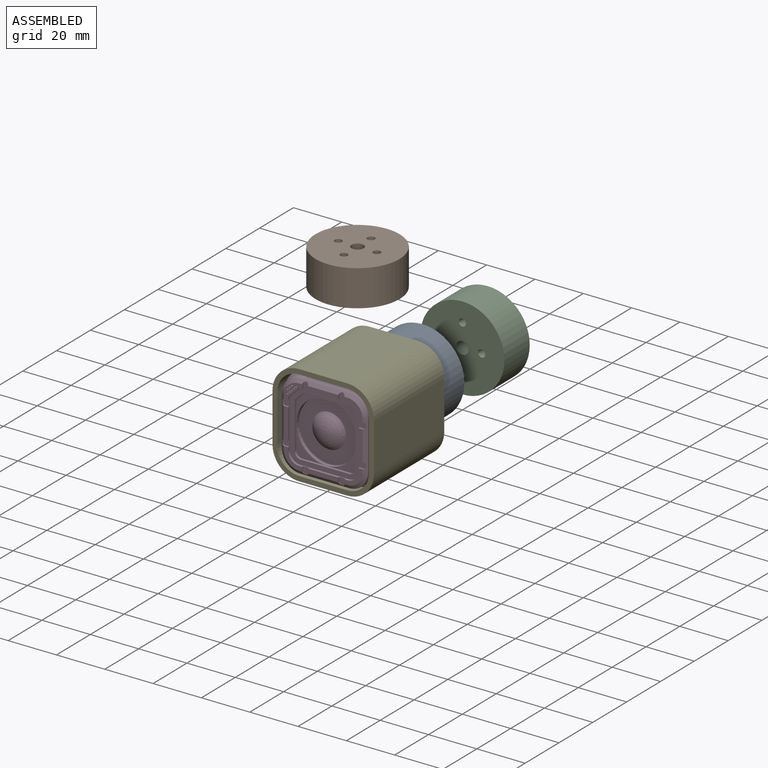
[diagram: assembled view]
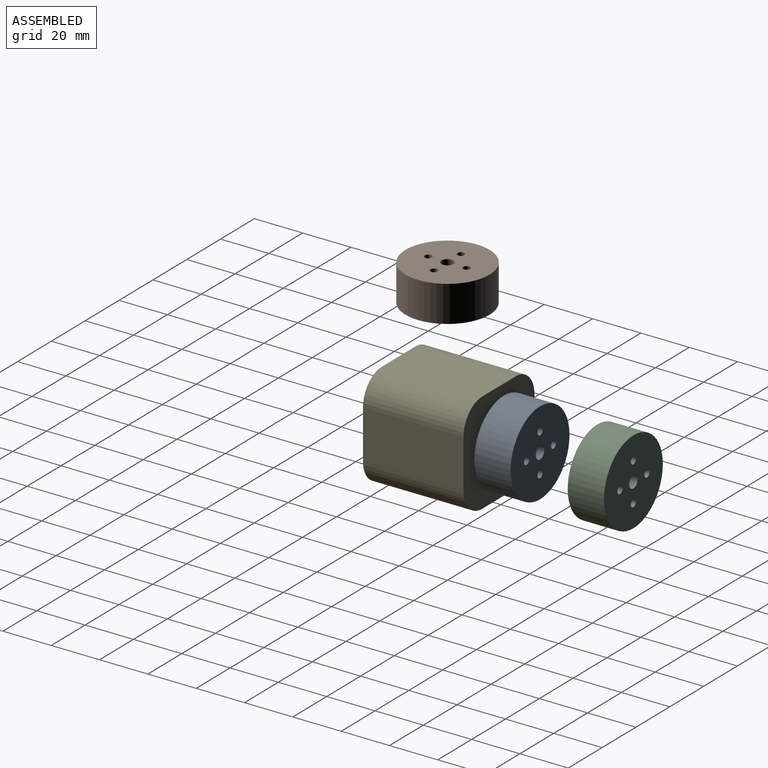
[diagram: assembled view, second angle]
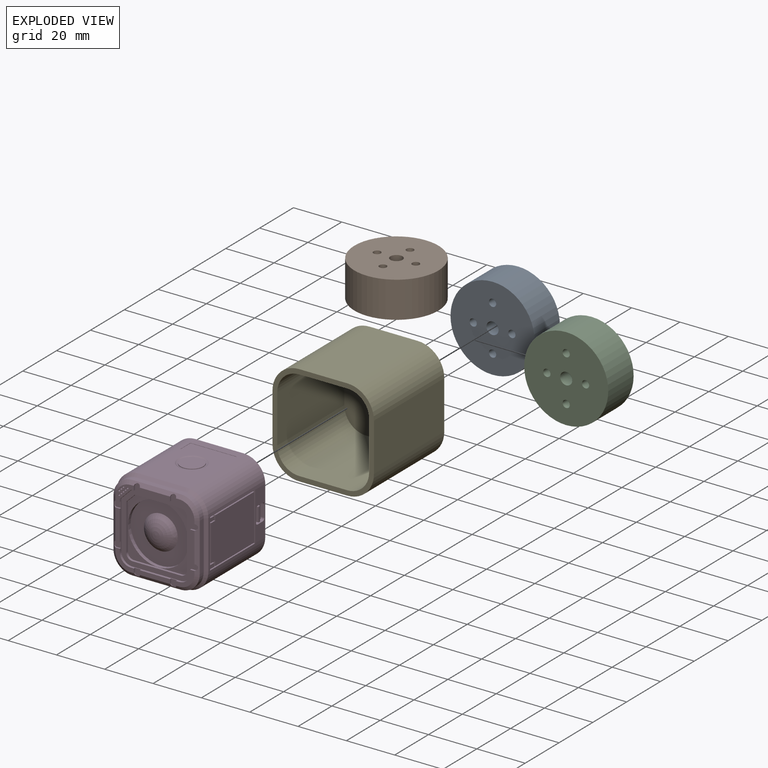
[diagram: exploded view]
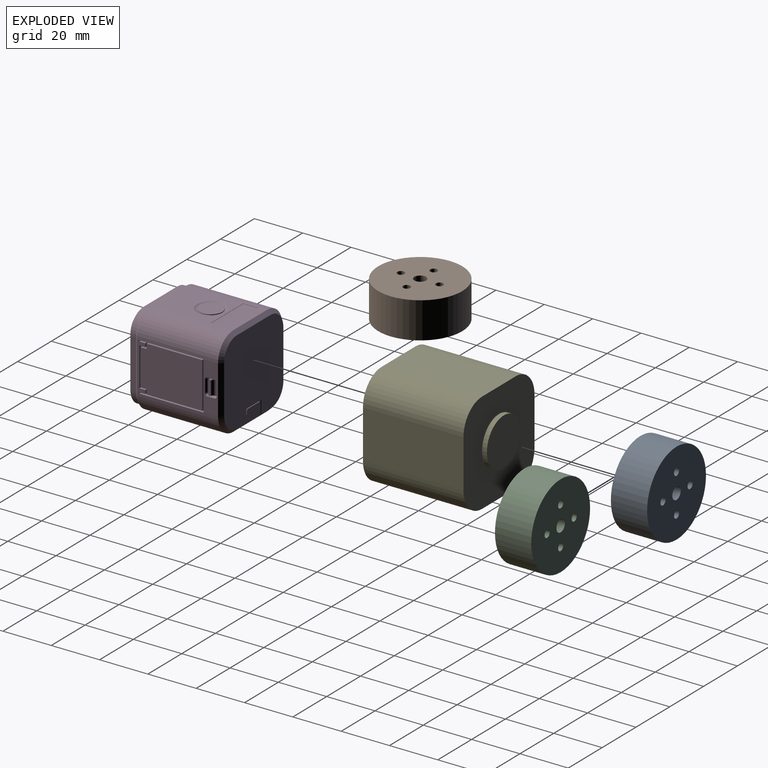
[diagram: exploded view, second angle]
ASSEMBLY  parts=5 mates=2
PART A: 20 faces, bbox 34.8x34.8x15 mm
  f0: cylinder r=17.4mm len=34.8mm, axis (0,0,-1), area 1639.9mm2, adj f1,f2
  f1: plane 34.8x34.8mm, normal (0,0,1), area 903.2mm2, adj f0,f11,f13,f15,f17,f19
  f2: plane 34.8x34.8mm, normal (0,0,-1), area 903.2mm2, adj f0,f3,f5,f7,f9,f19
  f3: cylinder r=1.5mm len=5mm, axis (0,0,-1), area 47.1mm2, adj f2,f4
  f4: plane 3x3mm, normal (0,0,-1), area 7.1mm2, adj f3
  f5: cylinder r=1.5mm len=5mm, axis (0,0,-1), area 47.1mm2, adj f2,f6
  f6: plane 3x3mm, normal (0,0,-1), area 7.1mm2, adj f5
  f7: cylinder r=1.5mm len=5mm, axis (0,0,-1), area 47.1mm2, adj f2,f8
  f8: plane 3x3mm, normal (0,0,-1), area 7.1mm2, adj f7
  f9: cylinder r=1.5mm len=5mm, axis (0,0,-1), area 47.1mm2, adj f2,f10
  f10: plane 3x3mm, normal (0,0,-1), area 7.1mm2, adj f9
  f11: cylinder r=1.5mm len=5mm, axis (0,0,1), area 47.1mm2, adj f1,f12
  f12: plane 3x3mm, normal (0,0,1), area 7.1mm2, adj f11
  f13: cylinder r=1.5mm len=5mm, axis (0,0,1), area 47.1mm2, adj f1,f14
  f14: plane 3x3mm, normal (0,0,1), area 7.1mm2, adj f13
  f15: cylinder r=1.5mm len=5mm, axis (0,0,1), area 47.1mm2, adj f1,f16
  f16: plane 3x3mm, normal (0,0,1), area 7.1mm2, adj f15
  f17: cylinder r=1.5mm len=5mm, axis (0,0,1), area 47.1mm2, adj f1,f18
  f18: plane 3x3mm, normal (0,0,1), area 7.1mm2, adj f17
  f19: cylinder r=2.5mm len=15mm, axis (0,0,1), area 235.6mm2, adj f1,f2
PART B: same geometry as A
PART C: same geometry as A
PART D: 200 faces, bbox 38.3x39.8x38.2 mm
  f0: plane 6x1mm, normal (1,0,0), area 5.9mm2, adj f1,f3,f182,f190,f191,f192,f193,f194
  f1: plane 3x2mm, normal (0,0,-1), area 3.7mm2, adj f0,f183,f184,f186,f187,f191,f192,f195
  f2: plane 20x6mm, normal (1,0,0), area 85.9mm2, adj f22,f23,f52,f156,f178,f179,f185,f188
  f3: plane 5.4x1mm, normal (0,-1,0), area 5.4mm2, adj f0,f180,f190,f191,f195,f199
  f4: plane 20x3.5mm, normal (1,0,0), area 27.5mm2, adj f22,f23,f47,f158,f159,f160,f161,f162
  f5: plane 20x1.5mm, normal (0,0.71,-0.71), area 38.5mm2, adj f18,f21,f54,f57,f145,f151,f153
  f6: plane 12.53x1.8mm, normal (0,-1,0), area 22.5mm2, adj f14,f67,f111,f114,f116,f117
  f7: plane 7.62x7.62mm, normal (0,-1,0), area 19.9mm2, adj f14,f16,f60,f65,f66,f67,f112,f113
  f8: plane 7.62x7.62mm, normal (0,-1,0), area 19.9mm2, adj f14,f15,f59,f67,f68,f69,f102,f104
  f9: plane 12.53x1.8mm, normal (0,-1,0), area 22.5mm2, adj f16,f65,f121,f124,f126,f127
  f10: plane 7.62x7.62mm, normal (0,-1,0), area 19.9mm2, adj f16,f17,f62,f63,f64,f65,f122,f123
  f11: plane 12.53x1.8mm, normal (0,-1,0), area 22.5mm2, adj f17,f63,f131,f134,f136,f138
  f12: plane 7.62x7.62mm, normal (0,-1,0), area 23.4mm2, adj f15,f17,f61,f63,f69,f70,f85,f87
  f13: plane 12.53x1.8mm, normal (0,-1,0), area 22.5mm2, adj f15,f69,f101,f103,f106,f107
  f14: plane 20x1.5mm, normal (0.55,-0.83,0), area 31.4mm2, adj f6,f7,f8,f29,f59,f60,f111,f113
  f15: plane 20x1.5mm, normal (0,-0.83,0.55), area 31.4mm2, adj f8,f12,f13,f26,f59,f61,f101,f102
  f16: plane 20x1.5mm, normal (0,-0.83,-0.55), area 31.4mm2, adj f7,f9,f10,f28,f60,f62,f121,f123
  f17: plane 20x1.5mm, normal (-0.55,-0.83,0), area 31.4mm2, adj f10,f11,f12,f27,f61,f62,f131,f132
  f18: plane 33.6x20mm, normal (0,0,-1), area 672mm2, adj f5,f22,f25,f51
  f19: plane 33.6x20mm, normal (0,0,1), area 454.1mm2, adj f23,f24,f38,f39,f40,f41,f43,f44
  f20: plane 33.6x20mm, normal (-1,0,0), area 672mm2, adj f24,f25,f48,f58
  f21: plane 35x35mm, normal (0,1,0), area 1122mm2, adj f5,f52,f53,f54,f55,f56,f57,f58
  f22: cylinder r=9mm len=33.6mm, axis (0,-1,0), area 475mm2, adj f2,f4,f18,f49,f54,f175
  f23: cylinder r=9mm len=33.6mm, axis (0,1,0), area 475mm2, adj f2,f4,f19,f45,f53,f157
  f24: cylinder r=9mm len=33.6mm, axis (0,-1,0), area 475mm2, adj f19,f20,f46,f56
  f25: cylinder r=9mm len=33.6mm, axis (0,1,0), area 475mm2, adj f18,f20,f50,f57
  f26: plane 20x2.35mm, normal (0,0,1), area 47mm2, adj f15,f30,f33,f44
  f27: plane 20x2.35mm, normal (-1,0,0), area 47mm2, adj f17,f30,f31,f48
  f28: plane 20x2.35mm, normal (0,0,-1), area 47mm2, adj f16,f31,f32,f51
  f29: plane 20x2.35mm, normal (1,0,0), area 47mm2, adj f14,f32,f33,f47
  f30: cylinder r=7.85mm len=7.85mm, axis (0,1,0), area 29mm2, adj f26,f27,f46,f61
  f31: cylinder r=7.85mm len=7.85mm, axis (0,-1,0), area 29mm2, adj f27,f28,f50,f62
  f32: cylinder r=7.85mm len=7.85mm, axis (0,1,0), area 29mm2, adj f28,f29,f49,f60
  f33: cylinder r=7.85mm len=7.85mm, axis (0,-1,0), area 29mm2, adj f26,f29,f45,f59
  f34: cylinder r=4.75mm len=9.5mm, axis (0,0,1), area 6mm2, adj f35,f37
  f35: plane 9.57x9.57mm, normal (0,0,1), area 1.1mm2, adj f34,f43
  f36: plane 9.3x9.3mm, normal (0,0,1), area 67.9mm2, adj f37
  f37: torus R=4.65mm, axis (0,0,1), area 4.7mm2, adj f34,f36
  f38: plane 6x0.1mm, normal (1,0,0), area 0.6mm2, adj f19,f39,f41,f42
  f39: plane 19x0.1mm, normal (0,1,0), area 1.9mm2, adj f19,f38,f40,f42
  f40: plane 6x0.1mm, normal (-1,0,0), area 0.6mm2, adj f19,f39,f41,f42
  f41: plane 19x0.1mm, normal (0,-1,0), area 1.9mm2, adj f19,f38,f40,f42
  f42: plane 19x6mm, normal (0,0,1), area 114mm2, adj f38,f39,f40,f41
  f43: torus R=4.79mm, axis (0,0,-1), area 34mm2, adj f19,f35
  f44: plane 20x1.15mm, normal (0,-0.71,0.71), area 32.5mm2, adj f19,f26,f45,f46
  f45: cone r=7.5mm half-angle=45deg, axis (0,1,0), area 21.5mm2, adj f23,f33,f44,f47
  f46: cone r=7.5mm half-angle=45deg, axis (0,1,0), area 21.5mm2, adj f24,f30,f44,f48
  f47: plane 20x1.15mm, normal (0.71,-0.71,0), area 32.5mm2, adj f4,f29,f45,f49
  f48: plane 20x1.15mm, normal (-0.71,-0.71,0), area 32.5mm2, adj f20,f27,f46,f50
  f49: cone r=7.5mm half-angle=45deg, axis (0,1,0), area 21.5mm2, adj f22,f32,f47,f51
  f50: cone r=7.5mm half-angle=45deg, axis (0,1,0), area 21.5mm2, adj f25,f31,f48,f51
  f51: plane 20x1.15mm, normal (0,-0.71,-0.71), area 32.5mm2, adj f18,f28,f49,f50
  f52: plane 20x1.5mm, normal (0.71,0.71,0), area 42.4mm2, adj f2,f21,f53,f54
  f53: cone r=7.5mm half-angle=45deg, axis (0,-1,0), area 27.5mm2, adj f21,f23,f52,f55
  f54: cone r=7.5mm half-angle=45deg, axis (0,-1,0), area 27.5mm2, adj f5,f21,f22,f52
  f55: plane 20x1.5mm, normal (0,0.71,0.71), area 42.4mm2, adj f19,f21,f53,f56
  f56: cone r=7.5mm half-angle=45deg, axis (0,-1,0), area 27.5mm2, adj f21,f24,f55,f58
  f57: cone r=7.5mm half-angle=45deg, axis (0,-1,0), area 27.5mm2, adj f5,f21,f25,f58
  f58: plane 20x1.5mm, normal (-0.71,0.71,0), area 42.4mm2, adj f20,f21,f56,f57
  f59: cone r=6.35mm half-angle=56.3deg, axis (0,1,0), area 20.1mm2, adj f8,f14,f15,f33
  f60: cone r=6.35mm half-angle=56.3deg, axis (0,1,0), area 20.1mm2, adj f7,f14,f16,f32
  f61: cone r=6.35mm half-angle=56.3deg, axis (0,1,0), area 20.1mm2, adj f12,f15,f17,f30
  f62: cone r=6.35mm half-angle=56.3deg, axis (0,1,0), area 20.1mm2, adj f10,f16,f17,f31
  f63: plane 19.85x1mm, normal (1,0,0), area 16.4mm2, adj f10,f11,f12,f64,f70,f71,f133,f134
  f64: cylinder r=4.55mm len=4.55mm, axis (0,-1,0), area 7.1mm2, adj f10,f63,f65,f71
  f65: plane 20x1mm, normal (0,0,1), area 16.5mm2, adj f7,f9,f10,f64,f66,f71,f122,f124
  f66: cylinder r=4.55mm len=4.55mm, axis (0,-1,0), area 7.1mm2, adj f7,f65,f67,f71
  f67: plane 20x1mm, normal (-1,0,0), area 16.5mm2, adj f6,f7,f8,f66,f68,f71,f112,f114
  f68: cylinder r=4.55mm len=4.55mm, axis (0,-1,0), area 7.1mm2, adj f8,f67,f69,f71
  f69: plane 19.85x1mm, normal (0,0,-1), area 16.4mm2, adj f8,f12,f13,f68,f70,f71,f103,f104
  f70: plane 4.7x4.7mm, normal (0.71,0,-0.71), area 6.6mm2, adj f12,f63,f69,f71
  f71: plane 29.1x29.1mm, normal (0,-1,0), area 202.8mm2, adj f63,f64,f65,f66,f67,f68,f69,f70
  f72: plane 19.02x1mm, normal (1,0,0), area 19mm2, adj f71,f73,f79,f80
  f73: cylinder r=2.55mm len=2.55mm, axis (0,-1,0), area 4mm2, adj f71,f72,f74,f80
  f74: plane 20x1mm, normal (0,0,1), area 20mm2, adj f71,f73,f75,f80
  f75: cylinder r=2.55mm len=2.55mm, axis (0,-1,0), area 4mm2, adj f71,f74,f76,f80
  f76: plane 20x1mm, normal (-1,0,0), area 20mm2, adj f71,f75,f77,f80
  f77: cylinder r=2.55mm len=2.55mm, axis (0,-1,0), area 4mm2, adj f71,f76,f78,f80
  f78: plane 19.02x1mm, normal (0,0,-1), area 19mm2, adj f71,f77,f79,f80
  f79: plane 3.53x3.53mm, normal (0.71,0,-0.71), area 5mm2, adj f71,f72,f78,f80
  f80: plane 25.1x25.1mm, normal (0,-1,0), area 128.7mm2, adj f72,f73,f74,f75,f76,f77,f78,f79
  f81: cylinder r=12.5mm len=25mm, axis (0,-1,0), area 117.8mm2, adj f80,f82
  f82: plane 25x25mm, normal (0,-1,0), area 336.9mm2, adj f81,f84
  f83: plane 0.14x0.14mm, normal (0,-1,0), area 0mm2, adj f84
  f84: torus R=0.07mm, axis (0,1,0), area 182.6mm2, adj f82,f83
  f85: cylinder r=0.35mm len=2mm, axis (0,-1,0), area 4.4mm2, adj f12,f86
  f86: plane 0.7x0.7mm, normal (0,-1,0), area 0.4mm2, adj f85
  f87: cylinder r=0.35mm len=2mm, axis (0,-1,0), area 4.4mm2, adj f12,f88
  f88: plane 0.7x0.7mm, normal (0,-1,0), area 0.4mm2, adj f87
  f89: cylinder r=0.35mm len=2mm, axis (0,-1,0), area 4.4mm2, adj f12,f90
  f90: plane 0.7x0.7mm, normal (0,-1,0), area 0.4mm2, adj f89
  f91: cylinder r=0.35mm len=2mm, axis (0,-1,0), area 4.4mm2, adj f12,f92
  f92: plane 0.7x0.7mm, normal (0,-1,0), area 0.4mm2, adj f91
  f93: cylinder r=0.35mm len=2mm, axis (0,-1,0), area 4.4mm2, adj f12,f94
  f94: plane 0.7x0.7mm, normal (0,-1,0), area 0.4mm2, adj f93
  f95: cylinder r=0.35mm len=2mm, axis (0,-1,0), area 4.4mm2, adj f12,f96
  f96: plane 0.7x0.7mm, normal (0,-1,0), area 0.4mm2, adj f95
  f97: cylinder r=0.35mm len=2mm, axis (0,-1,0), area 4.4mm2, adj f12,f98
  f98: plane 0.7x0.7mm, normal (0,-1,0), area 0.4mm2, adj f97
  f99: cylinder r=0.35mm len=2mm, axis (0,-1,0), area 4.4mm2, adj f12,f100
  f100: plane 0.7x0.7mm, normal (0,-1,0), area 0.4mm2, adj f99
  f101: cylinder r=1.25mm len=1.25mm, axis (0,-1,0), area 0.6mm2, adj f13,f15,f103,f105
  f102: cylinder r=1.25mm len=1.25mm, axis (0,-1,0), area 0.6mm2, adj f8,f15,f104,f105
  f103: plane 1.6x0.7mm, normal (1,0,0), area 1.1mm2, adj f13,f69,f101,f105
  f104: plane 1.6x0.7mm, normal (-1,0,0), area 1.1mm2, adj f8,f69,f102,f105
  f105: plane 2.85x2.5mm, normal (0,-1,0), area 6.5mm2, adj f69,f101,f102,f103,f104
  f106: cylinder r=1.25mm len=1.25mm, axis (0,-1,0), area 0.6mm2, adj f13,f15,f107,f110
  f107: plane 1.6x0.7mm, normal (-1,0,0), area 1.1mm2, adj f13,f69,f106,f110
  f108: cylinder r=1.25mm len=1.25mm, axis (0,-1,0), area 0.6mm2, adj f12,f15,f109,f110
  f109: plane 1.6x0.7mm, normal (1,0,0), area 1.1mm2, adj f12,f69,f108,f110
  f110: plane 2.85x2.5mm, normal (0,-1,0), area 6.5mm2, adj f69,f106,f107,f108,f109
  f111: cylinder r=1.25mm len=1.25mm, axis (0,-1,0), area 0.6mm2, adj f6,f14,f114,f115
  f112: plane 1.6x0.7mm, normal (0,0,1), area 1.1mm2, adj f7,f67,f113,f115
  f113: cylinder r=1.25mm len=1.25mm, axis (0,-1,0), area 0.6mm2, adj f7,f14,f112,f115
  f114: plane 1.6x0.7mm, normal (0,0,-1), area 1.1mm2, adj f6,f67,f111,f115
  f115: plane 2.85x2.5mm, normal (0,-1,0), area 6.5mm2, adj f67,f111,f112,f113,f114
  f116: cylinder r=1.25mm len=1.25mm, axis (0,-1,0), area 0.6mm2, adj f6,f14,f117,f120
  f117: plane 1.6x0.7mm, normal (0,0,1), area 1.1mm2, adj f6,f67,f116,f120
  f118: cylinder r=1.25mm len=1.25mm, axis (0,-1,0), area 0.6mm2, adj f8,f14,f119,f120
  f119: plane 1.6x0.7mm, normal (0,0,-1), area 1.1mm2, adj f8,f67,f118,f120
  f120: plane 2.85x2.5mm, normal (0,-1,0), area 6.5mm2, adj f67,f116,f117,f118,f119
  f121: cylinder r=1.25mm len=1.25mm, axis (0,-1,0), area 0.6mm2, adj f9,f16,f124,f125
  f122: plane 1.6x0.7mm, normal (1,0,0), area 1.1mm2, adj f10,f65,f123,f125
  f123: cylinder r=1.25mm len=1.25mm, axis (0,-1,0), area 0.6mm2, adj f10,f16,f122,f125
  f124: plane 1.6x0.7mm, normal (-1,0,0), area 1.1mm2, adj f9,f65,f121,f125
  f125: plane 2.85x2.5mm, normal (0,-1,0), area 6.5mm2, adj f65,f121,f122,f123,f124
  f126: cylinder r=1.25mm len=1.25mm, axis (0,-1,0), area 0.6mm2, adj f9,f16,f127,f130
  f127: plane 1.6x0.7mm, normal (1,0,0), area 1.1mm2, adj f9,f65,f126,f130
  f128: cylinder r=1.25mm len=1.25mm, axis (0,-1,0), area 0.6mm2, adj f7,f16,f129,f130
  f129: plane 1.6x0.7mm, normal (-1,0,0), area 1.1mm2, adj f7,f65,f128,f130
  f130: plane 2.85x2.5mm, normal (0,-1,0), area 6.5mm2, adj f65,f126,f127,f128,f129
  f131: cylinder r=1.25mm len=1.25mm, axis (0,-1,0), area 0.6mm2, adj f11,f17,f134,f135
  f132: cylinder r=1.25mm len=1.25mm, axis (0,-1,0), area 0.6mm2, adj f10,f17,f133,f135
  f133: plane 1.6x0.7mm, normal (0,0,1), area 1.1mm2, adj f10,f63,f132,f135
  f134: plane 1.6x0.7mm, normal (0,0,-1), area 1.1mm2, adj f11,f63,f131,f135
  f135: plane 2.85x2.5mm, normal (0,-1,0), area 6.5mm2, adj f63,f131,f132,f133,f134
  f136: cylinder r=1.25mm len=1.25mm, axis (0,-1,0), area 0.6mm2, adj f11,f17,f138,f140
  f137: cylinder r=1.25mm len=1.25mm, axis (0,-1,0), area 0.6mm2, adj f12,f17,f139,f140
  f138: plane 1.6x0.7mm, normal (0,0,1), area 1.1mm2, adj f11,f63,f136,f140
  f139: plane 1.6x0.7mm, normal (0,0,-1), area 1.1mm2, adj f12,f63,f137,f140
  f140: plane 2.85x2.5mm, normal (0,-1,0), area 6.5mm2, adj f63,f136,f137,f138,f139
  f141: plane 7x0.3mm, normal (0,0,-1), area 2.1mm2, adj f145,f146,f147,f150
  f142: plane 1.5x0.3mm, normal (1,0,0), area 0.5mm2, adj f145,f146,f147,f148
  f143: plane 7x0.3mm, normal (0,0,1), area 2.1mm2, adj f145,f146,f148,f149
  f144: plane 1.5x0.3mm, normal (-1,0,0), area 0.5mm2, adj f145,f146,f149,f150
  f145: plane 8.9x5.8mm, normal (0,1,0), area 31.6mm2, adj f5,f141,f142,f143,f144,f147,f148,f149
  f146: plane 8x2.5mm, normal (0,1,0), area 19.8mm2, adj f141,f142,f143,f144,f147,f148,f149,f150
  f147: cylinder r=0.5mm len=0.5mm, axis (0,1,0), area 0.2mm2, adj f141,f142,f145,f146
  f148: cylinder r=0.5mm len=0.5mm, axis (0,-1,0), area 0.2mm2, adj f142,f143,f145,f146
  f149: cylinder r=0.5mm len=0.5mm, axis (0,1,0), area 0.2mm2, adj f143,f144,f145,f146
  f150: cylinder r=0.5mm len=0.5mm, axis (0,-1,0), area 0.2mm2, adj f141,f144,f145,f146
  f151: cylinder r=0.3mm len=5.1mm, axis (0,0,-1), area 2.4mm2, adj f5,f21,f145,f152
  f152: torus R=0.7mm, axis (0,1,0), area 0.7mm2, adj f21,f145,f151,f154
  f153: cylinder r=0.3mm len=5.1mm, axis (0,0,1), area 2.4mm2, adj f5,f21,f145,f155
  f154: cylinder r=0.3mm len=7.5mm, axis (1,0,0), area 3.5mm2, adj f21,f145,f152,f155
  f155: torus R=0.7mm, axis (0,1,0), area 0.7mm2, adj f21,f145,f153,f154
  f156: plane 20x2mm, normal (0,-1,0), area 40mm2, adj f2,f157,f175,f176
  f157: plane 26.6x2mm, normal (0,0,-1), area 53.2mm2, adj f23,f156,f158,f176
  f158: plane 2x0.5mm, normal (0,1,0), area 1mm2, adj f4,f157,f159,f176
  f159: plane 2.5x2mm, normal (0,0,1), area 5mm2, adj f4,f158,f160,f176
  f160: plane 2x1.5mm, normal (0,1,0), area 3mm2, adj f4,f159,f161,f176
  f161: plane 2.5x2mm, normal (0,0,-1), area 5mm2, adj f4,f160,f162,f176
  f162: plane 16x2mm, normal (0,1,0), area 32mm2, adj f4,f161,f163,f176
  f163: plane 2.5x2mm, normal (0,0,1), area 5mm2, adj f4,f162,f164,f176
  f164: plane 2x1.5mm, normal (0,1,0), area 3mm2, adj f4,f163,f165,f176
  f165: plane 2.5x2mm, normal (0,0,-1), area 5mm2, adj f4,f164,f166,f176
  f166: plane 2x0.5mm, normal (0,1,0), area 1mm2, adj f4,f165,f175,f176
  f167: plane 2.5x2mm, normal (0,0,-1), area 5mm2, adj f168,f174,f176,f177
  f168: plane 15x2mm, normal (0,-1,0), area 30mm2, adj f167,f169,f176,f177
  f169: plane 2.5x2mm, normal (0,0,1), area 5mm2, adj f168,f170,f176,f177
  f170: plane 2x2mm, normal (0,-1,0), area 4mm2, adj f169,f171,f176,f177
  f171: plane 23.1x2mm, normal (0,0,1), area 46.2mm2, adj f170,f172,f176,f177
  f172: plane 19x2mm, normal (0,1,0), area 38mm2, adj f171,f173,f176,f177
  f173: plane 23.1x2mm, normal (0,0,-1), area 46.2mm2, adj f172,f174,f176,f177
  f174: plane 2x2mm, normal (0,-1,0), area 4mm2, adj f167,f173,f176,f177
  f175: plane 26.6x2mm, normal (0,0,1), area 53.2mm2, adj f22,f156,f166,f176
  f176: plane 26.6x20mm, normal (1,0,0), area 48.1mm2, adj f156,f157,f158,f159,f160,f161,f162,f163
  f177: plane 25.6x19mm, normal (1,0,0), area 476.4mm2, adj f167,f168,f169,f170,f171,f172,f173,f174
  f178: plane 2.5x2mm, normal (0,0,-1), area 5mm2, adj f2,f181,f186,f188
  f179: plane 2.5x2mm, normal (0,0,1), area 5mm2, adj f2,f184,f186,f189
  f180: plane 5x0.5mm, normal (1,0,0), area 2.5mm2, adj f3,f195,f197,f199
  f181: plane 2x0.5mm, normal (0,1,0), area 0.7mm2, adj f178,f182,f186,f199
  f182: plane 3x2mm, normal (0,0,1), area 3.7mm2, adj f0,f181,f183,f186,f187,f190,f194,f199
  f183: plane 6x0.8mm, normal (0,1,0), area 4.8mm2, adj f1,f182,f186,f187
  f184: plane 2x0.5mm, normal (0,1,0), area 0.7mm2, adj f1,f179,f186,f195
  f185: plane 5x2mm, normal (0,-1,0), area 10mm2, adj f2,f186,f188,f189
  f186: plane 7x3.5mm, normal (1,0,0), area 6.1mm2, adj f1,f178,f179,f181,f182,f183,f184,f185
  f187: plane 6x0.56mm, normal (1,0,0), area 3.2mm2, adj f1,f182,f183,f192,f193,f194
  f188: cylinder r=1mm len=2mm, axis (-1,0,0), area 3.1mm2, adj f2,f178,f185,f186
  f189: cylinder r=1mm len=2mm, axis (1,0,0), area 3.1mm2, adj f2,f179,f185,f186
  f190: cylinder r=0.3mm len=0.98mm, axis (-1,0,0), area 0.4mm2, adj f0,f3,f182,f199
  f191: cylinder r=0.3mm len=0.98mm, axis (1,0,0), area 0.4mm2, adj f0,f1,f3,f195
  f192: torus R=1.77mm, axis (1,0,0), area 0.7mm2, adj f0,f1,f187,f193
  f193: cylinder r=1.5mm len=5.4mm, axis (0,0,-1), area 11.1mm2, adj f0,f187,f192,f194
  f194: torus R=1.77mm, axis (1,0,0), area 0.7mm2, adj f0,f182,f187,f193
  f195: cylinder r=1mm len=1mm, axis (0,1,0), area 0.8mm2, adj f1,f2,f3,f180,f184,f191,f196
  f196: sphere r=1mm, area 1.6mm2, adj f2,f195,f197
  f197: cylinder r=1mm len=5mm, axis (0,0,-1), area 7.9mm2, adj f2,f180,f196,f198
  f198: sphere r=1mm, area 1.6mm2, adj f2,f197,f199
  f199: cylinder r=1mm len=1mm, axis (0,-1,0), area 0.8mm2, adj f2,f3,f180,f181,f182,f190,f198
PART E: 21 faces, bbox 42x42x43.6 mm
  f0: plane 42x42mm, normal (0,0,-1), area 285.7mm2, adj f1,f2,f3,f4,f5,f6,f7,f8
  f1: plane 39.6x20mm, normal (0,1,0), area 792mm2, adj f0,f2,f12,f17
  f2: cylinder r=9mm len=39.6mm, axis (0,0,1), area 559.8mm2, adj f0,f1,f3,f17
  f3: plane 39.6x20mm, normal (1,0,0), area 792mm2, adj f0,f2,f4,f17
  f4: cylinder r=9mm len=39.6mm, axis (0,0,1), area 559.8mm2, adj f0,f3,f5,f17
  f5: plane 39.6x20mm, normal (0,-1,0), area 792mm2, adj f0,f4,f13,f17
  f6: plane 41.6x20mm, normal (1,0,0), area 832mm2, adj f0,f7,f15,f18
  f7: cylinder r=11mm len=41.6mm, axis (0,0,1), area 718.8mm2, adj f0,f6,f8,f18
  f8: plane 41.6x20mm, normal (0,1,0), area 832mm2, adj f0,f7,f9,f18
  f9: cylinder r=11mm len=41.6mm, axis (0,0,1), area 718.8mm2, adj f0,f8,f10,f18
  f10: plane 41.6x20mm, normal (-1,0,0), area 832mm2, adj f0,f9,f11,f18
  f11: cylinder r=11mm len=41.6mm, axis (0,0,1), area 718.8mm2, adj f0,f10,f16,f18
  f12: cylinder r=9mm len=39.6mm, axis (0,0,1), area 559.8mm2, adj f0,f1,f14,f17
  f13: cylinder r=9mm len=39.6mm, axis (0,0,1), area 559.8mm2, adj f0,f5,f14,f17
  f14: plane 39.6x20mm, normal (-1,0,0), area 792mm2, adj f0,f12,f13,f17
  f15: cylinder r=11mm len=41.6mm, axis (0,0,1), area 718.8mm2, adj f0,f6,f16,f18
  f16: plane 41.6x20mm, normal (0,-1,0), area 832mm2, adj f0,f11,f15,f18
  f17: plane 38x38mm, normal (0,0,-1), area 1374.5mm2, adj f1,f2,f3,f4,f5,f12,f13,f14
  f18: plane 42x42mm, normal (0,0,1), area 1346mm2, adj f6,f7,f8,f9,f10,f11,f15,f16
  f19: cylinder r=10mm len=20mm, axis (0,0,-1), area 125.7mm2, adj f18,f20
  f20: plane 20x20mm, normal (0,0,1), area 314.2mm2, adj f19
PLACE A rot(axis=(-1,0,0),90deg) t=(0,21.3,6.95)mm
PLACE B t=(0,-2,53)mm
PLACE C rot(axis=(-1,0,0),90deg) t=(0,59.94,6.43)mm
PLACE D t=(0,-19.3,5.53)mm fixed
PLACE E rot(axis=(-1,0,0),90deg) t=(0,17.3,6.95)mm
MATE fastened D.f21 <-> E.f17  axis (0,1,0) through (0,17.3,6.24)mm
MATE fastened E.f19 <-> A.f19  axis (0,1,0) through (0,21.3,6.95)mm
